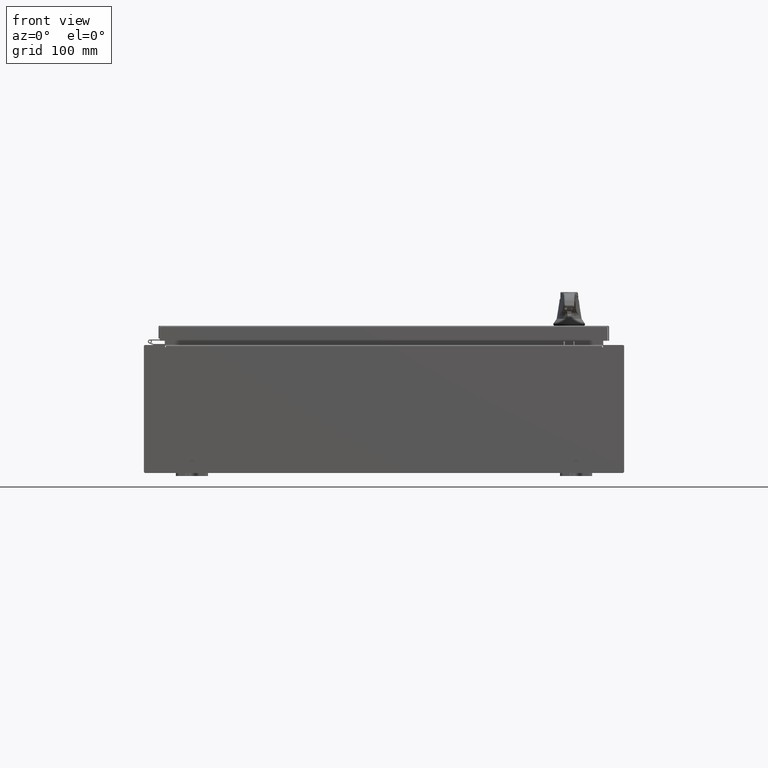
[diagram: clean part render]
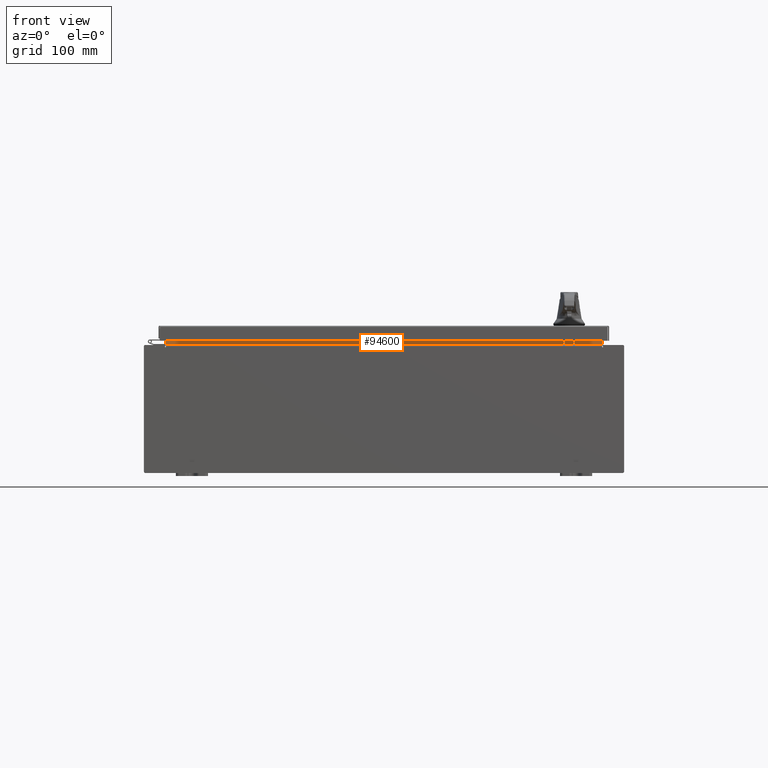
[diagram: same view with one face highlighted and labeled with its STEP entity id]
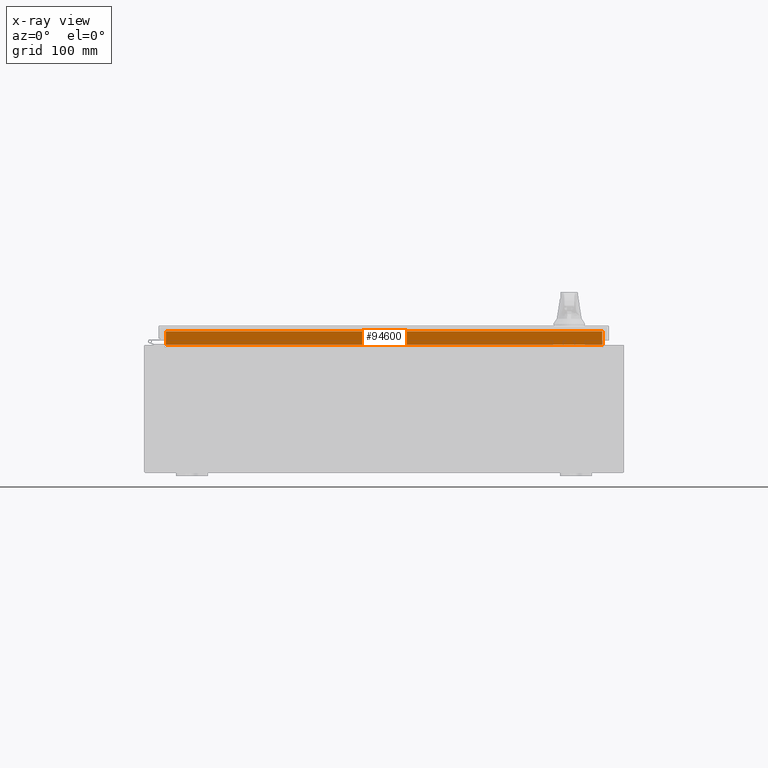
[diagram: x-ray of the same camera — body ghosted, the highlighted face saturated]
A machine part, front view. The second image highlights one B-rep face of the part: STEP entity #94600.
The next image is the same camera in x-ray: the body ghosted, the highlighted face saturated — about 0% of this face is hidden behind the body in this view.
In plain terms, the highlighted planar face has unit normal (0, -1, 0).
Its self-contained STEP definition (entity closure, byte-faithful):
#2322 = DIRECTION ( 'NONE',  ( -1.000000000000000000, -0.0000000000000000000, -0.0000000000000000000 ) ) ;
#4321 = ORIENTED_EDGE ( 'NONE', *, *, #34490, .F. ) ;
#5382 = PLANE ( 'NONE',  #6401 ) ;
#6401 = AXIS2_PLACEMENT_3D ( 'NONE', #32479, #14520, #78429 ) ;
#6772 = VECTOR ( 'NONE', #69228, 39.37007874015748100 ) ;
#7858 = EDGE_CURVE ( 'NONE', #94404, #110727, #117794, .T. ) ;
#13295 = VERTEX_POINT ( 'NONE', #31463 ) ;
#14520 = DIRECTION ( 'NONE',  ( 0.0000000000000000000, 1.000000000000000000, 0.0000000000000000000 ) ) ;
#16523 = EDGE_CURVE ( 'NONE', #110727, #13295, #111455, .T. ) ;
#31463 = CARTESIAN_POINT ( 'NONE',  ( -13.63719999999999800, -1.300299999999999800, 4.013000000000003500 ) ) ;
#32479 = CARTESIAN_POINT ( 'NONE',  ( 0.0000000000000000000, -1.300299999999999800, 0.0000000000000000000 ) ) ;
#34490 = EDGE_CURVE ( 'NONE', #13295, #37523, #101016, .T. ) ;
#35768 = VECTOR ( 'NONE', #86685, 39.37007874015748100 ) ;
#37523 = VERTEX_POINT ( 'NONE', #106425 ) ;
#38134 = EDGE_LOOP ( 'NONE', ( #66666, #44544, #72030, #4321 ) ) ;
#44544 = ORIENTED_EDGE ( 'NONE', *, *, #7858, .F. ) ;
#44921 = VECTOR ( 'NONE', #2322, 39.37007874015748100 ) ;
#66103 = CARTESIAN_POINT ( 'NONE',  ( 13.63720000000000400, -1.300299999999999300, 4.837600000000003700 ) ) ;
#66666 = ORIENTED_EDGE ( 'NONE', *, *, #16523, .F. ) ;
#68190 = DIRECTION ( 'NONE',  ( -0.0000000000000000000, -0.0000000000000000000, 1.000000000000000000 ) ) ;
#68440 = LINE ( 'NONE', #113714, #114173 ) ;
#69228 = DIRECTION ( 'NONE',  ( 1.000000000000000000, 0.0000000000000000000, -2.003232330437526000E-017 ) ) ;
#72030 = ORIENTED_EDGE ( 'NONE', *, *, #103743, .F. ) ;
#75224 = CARTESIAN_POINT ( 'NONE',  ( 13.63720000000000400, -1.300299999999999800, 4.837600000000003700 ) ) ;
#78429 = DIRECTION ( 'NONE',  ( 0.0000000000000000000, -0.0000000000000000000, 1.000000000000000000 ) ) ;
#86685 = DIRECTION ( 'NONE',  ( -0.0000000000000000000, -0.0000000000000000000, -1.000000000000000000 ) ) ;
#94404 = VERTEX_POINT ( 'NONE', #75224 ) ;
#94600 = ADVANCED_FACE ( 'NONE', ( #103885 ), #5382, .T. ) ;
#99021 = CARTESIAN_POINT ( 'NONE',  ( -13.63719999999999800, -1.300299999999999300, 4.837600000000003700 ) ) ;
#101016 = LINE ( 'NONE', #114754, #6772 ) ;
#103743 = EDGE_CURVE ( 'NONE', #37523, #94404, #68440, .T. ) ;
#103885 = FACE_OUTER_BOUND ( 'NONE', #38134, .T. ) ;
#104580 = CARTESIAN_POINT ( 'NONE',  ( -13.63719999999999800, -1.300299999999999800, 4.000000000000004400 ) ) ;
#106425 = CARTESIAN_POINT ( 'NONE',  ( 13.63720000000000000, -1.300299999999999800, 4.013000000000003500 ) ) ;
#110727 = VERTEX_POINT ( 'NONE', #99021 ) ;
#111455 = LINE ( 'NONE', #104580, #35768 ) ;
#113714 = CARTESIAN_POINT ( 'NONE',  ( 13.63720000000000400, -1.300299999999999800, 4.925300000000004500 ) ) ;
#114173 = VECTOR ( 'NONE', #68190, 39.37007874015748100 ) ;
#114754 = CARTESIAN_POINT ( 'NONE',  ( -13.63719999999999800, -1.300299999999999800, 4.013000000000003500 ) ) ;
#117794 = LINE ( 'NONE', #66103, #44921 ) ;